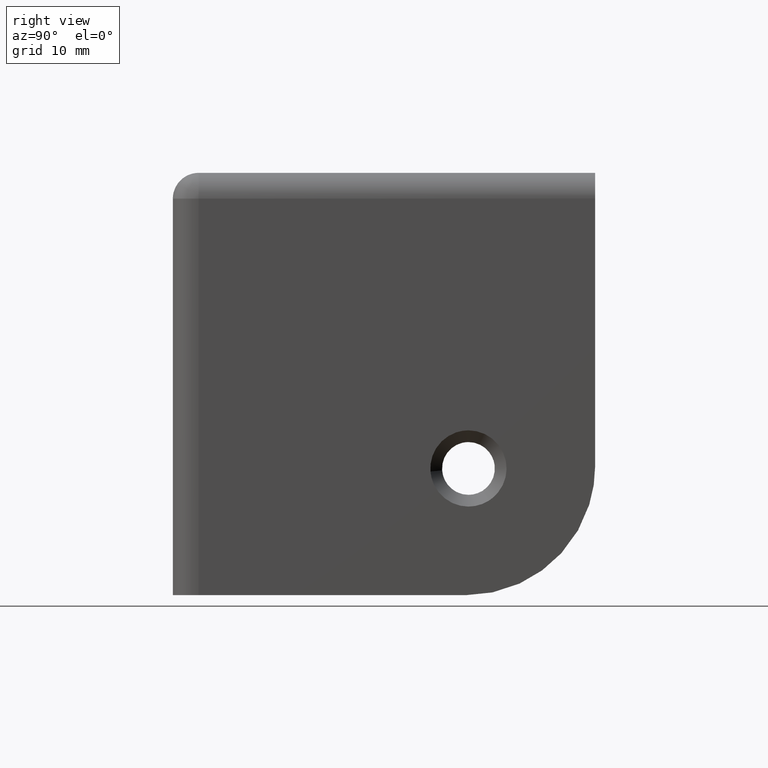
[diagram: clean part render]
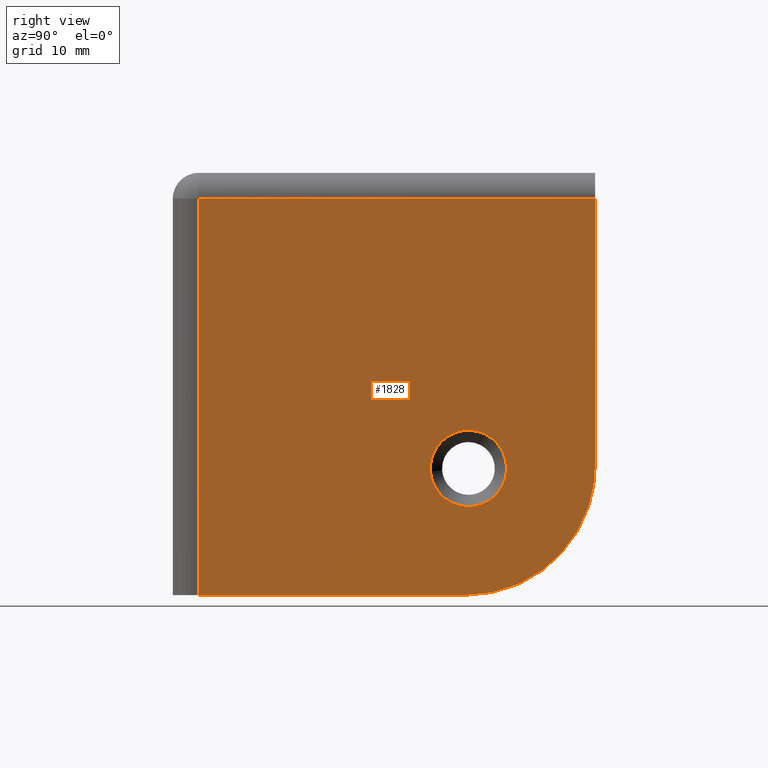
[diagram: same view with one face highlighted and labeled with its STEP entity id]
A machine part, right view. The second image highlights one B-rep face of the part: STEP entity #1828.
In plain terms, the highlighted face is a freeform B-spline surface patch.
Its self-contained STEP definition (entity closure, byte-faithful):
#413=CARTESIAN_POINT('',(3.235248E-012,26.948015078753819,8.060119841221102));
#414=VERTEX_POINT('',#413);
#420=CARTESIAN_POINT('',(4.032016E-015,25.199999999999999,14.050000000000001));
#421=VERTEX_POINT('',#420);
#422=CARTESIAN_POINT('',(4.032016E-015,25.199999999999999,14.050000000000001));
#423=CARTESIAN_POINT('',(4.032016E-015,28.450000000000003,14.050000000000001));
#424=CARTESIAN_POINT('',(4.032016E-015,28.449999999999999,10.800000000000001));
#425=CARTESIAN_POINT('',(4.032016E-015,28.449999999999999,9.018370618032277));
#426=CARTESIAN_POINT('',(3.235248E-012,26.948015078753819,8.060119841221102));
#434=(BOUNDED_CURVE()B_SPLINE_CURVE(2,(#422,#423,#424,#425,#426),.UNSPECIFIED.,.F.,.U.)B_SPLINE_CURVE_WITH_KNOTS((3,2,3),(0.0,0.250000000000000,0.407950112621783),.UNSPECIFIED.)CURVE()GEOMETRIC_REPRESENTATION_ITEM()RATIONAL_B_SPLINE_CURVE((1.0,0.707106781186547,1.0,0.814949932409034,0.863729296951362))REPRESENTATION_ITEM(''));
#435=EDGE_CURVE('',#421,#414,#434,.T.);
#437=CARTESIAN_POINT('',(9.120925E-012,21.960018665363730,10.545007938814059));
#438=VERTEX_POINT('',#437);
#439=CARTESIAN_POINT('',(9.120925E-012,21.960018665363730,10.545007938814068));
#440=CARTESIAN_POINT('',(4.032016E-015,21.950000000000003,10.672307152155025));
#441=CARTESIAN_POINT('',(4.032016E-015,21.949999999999999,10.800000000000001));
#442=CARTESIAN_POINT('',(4.032016E-015,21.950000000000003,14.050000000000001));
#443=CARTESIAN_POINT('',(4.032016E-015,25.199999999999999,14.050000000000001));
#451=(BOUNDED_CURVE()B_SPLINE_CURVE(2,(#439,#440,#441,#442,#443),.UNSPECIFIED.,.F.,.U.)B_SPLINE_CURVE_WITH_KNOTS((3,2,3),(0.736331300625389,0.750000000000000,1.0),.UNSPECIFIED.)CURVE()GEOMETRIC_REPRESENTATION_ITEM()RATIONAL_B_SPLINE_CURVE((0.969723356156418,0.983986122572707,1.0,0.707106781186547,1.0))REPRESENTATION_ITEM(''));
#452=EDGE_CURVE('',#438,#421,#451,.T.);
#556=CARTESIAN_POINT('',(4.032016E-015,25.199999999999999,7.550000000000001));
#557=VERTEX_POINT('',#556);
#558=CARTESIAN_POINT('',(4.032016E-015,25.199999999999999,7.550000000000001));
#559=CARTESIAN_POINT('',(4.032016E-015,22.195730902240513,7.550000000000001));
#560=CARTESIAN_POINT('',(9.120925E-012,21.960018665363737,10.545007938814068));
#568=(BOUNDED_CURVE()B_SPLINE_CURVE(2,(#558,#559,#560),.UNSPECIFIED.,.F.,.U.)B_SPLINE_CURVE_WITH_KNOTS((3,3),(0.500000000000000,0.736331300625390),.UNSPECIFIED.)CURVE()GEOMETRIC_REPRESENTATION_ITEM()RATIONAL_B_SPLINE_CURVE((1.0,0.723120658613840,0.969723356156420))REPRESENTATION_ITEM(''));
#569=EDGE_CURVE('',#557,#438,#568,.T.);
#571=CARTESIAN_POINT('',(3.235248E-012,26.948015078753819,8.060119841221102));
#572=CARTESIAN_POINT('',(4.032016E-015,26.148441180049439,7.550000000000001));
#573=CARTESIAN_POINT('',(4.032016E-015,25.199999999999999,7.550000000000001));
#581=(BOUNDED_CURVE()B_SPLINE_CURVE(2,(#571,#572,#573),.UNSPECIFIED.,.F.,.U.)B_SPLINE_CURVE_WITH_KNOTS((3,3),(0.407950112621783,0.500000000000000),.UNSPECIFIED.)CURVE()GEOMETRIC_REPRESENTATION_ITEM()RATIONAL_B_SPLINE_CURVE((0.863729296951362,0.892156848777513,1.0))REPRESENTATION_ITEM(''));
#582=EDGE_CURVE('',#414,#557,#581,.T.);
#1281=CARTESIAN_POINT('',(0.0,2.200000000000000,0.0));
#1282=VERTEX_POINT('',#1281);
#1298=CARTESIAN_POINT('',(0.0,2.200000000000000,33.799999999999997));
#1299=VERTEX_POINT('',#1298);
#1300=CARTESIAN_POINT('',(0.0,2.200000000000000,33.799999999999997));
#1301=CARTESIAN_POINT('',(0.0,2.200000000000000,0.0));
#1302=QUASI_UNIFORM_CURVE('',1,(#1300,#1301),.UNSPECIFIED.,.F.,.U.);
#1303=EDGE_CURVE('',#1299,#1282,#1302,.T.);
#1400=CARTESIAN_POINT('',(0.0,36.0,33.799999999999997));
#1401=VERTEX_POINT('',#1400);
#1421=CARTESIAN_POINT('',(0.0,36.0,33.799999999999997));
#1422=CARTESIAN_POINT('',(0.0,2.200000000000000,33.799999999999997));
#1423=QUASI_UNIFORM_CURVE('',1,(#1421,#1422),.UNSPECIFIED.,.F.,.U.);
#1424=EDGE_CURVE('',#1401,#1299,#1423,.T.);
#1549=CARTESIAN_POINT('',(0.0,25.0,1.776357E-015));
#1550=VERTEX_POINT('',#1549);
#1551=CARTESIAN_POINT('',(0.0,36.0,11.0));
#1552=VERTEX_POINT('',#1551);
#1553=CARTESIAN_POINT('',(0.0,25.0,0.0));
#1554=CARTESIAN_POINT('',(0.0,36.000000000000014,0.0));
#1555=CARTESIAN_POINT('',(0.0,36.000000000000007,11.0));
#1563=(BOUNDED_CURVE()B_SPLINE_CURVE(2,(#1553,#1554,#1555),.UNSPECIFIED.,.F.,.U.)CURVE()GEOMETRIC_REPRESENTATION_ITEM()QUASI_UNIFORM_CURVE()RATIONAL_B_SPLINE_CURVE((1.0,0.707106781186548,1.0))REPRESENTATION_ITEM(''));
#1564=EDGE_CURVE('',#1550,#1552,#1563,.T.);
#1607=CARTESIAN_POINT('',(0.0,36.0,33.799999999999997));
#1608=CARTESIAN_POINT('',(0.0,36.0,11.0));
#1609=QUASI_UNIFORM_CURVE('',1,(#1607,#1608),.UNSPECIFIED.,.F.,.U.);
#1610=EDGE_CURVE('',#1401,#1552,#1609,.T.);
#1676=CARTESIAN_POINT('',(0.0,25.0,1.776357E-015));
#1677=CARTESIAN_POINT('',(0.0,2.200000000000000,0.0));
#1678=QUASI_UNIFORM_CURVE('',1,(#1676,#1677),.UNSPECIFIED.,.F.,.U.);
#1679=EDGE_CURVE('',#1550,#1282,#1678,.T.);
#1810=CARTESIAN_POINT('',(0.0,0.511690065510962,35.488309299908600));
#1811=CARTESIAN_POINT('',(0.0,0.511690065510962,-1.688310810886352));
#1812=CARTESIAN_POINT('',(0.0,37.688310841075683,35.488309299908600));
#1813=CARTESIAN_POINT('',(0.0,37.688310841075683,-1.688310810886352));
#1814=B_SPLINE_SURFACE_WITH_KNOTS('',1,1,((#1810,#1812),(#1811,#1813)),.UNSPECIFIED.,.F.,.F.,.U.,(2,2),(2,2),(0.0,37.176620110794950),(0.0,37.176620775564722),.UNSPECIFIED.);
#1815=ORIENTED_EDGE('',*,*,#1424,.T.);
#1816=ORIENTED_EDGE('',*,*,#1303,.T.);
#1817=ORIENTED_EDGE('',*,*,#1679,.F.);
#1818=ORIENTED_EDGE('',*,*,#1564,.T.);
#1819=ORIENTED_EDGE('',*,*,#1610,.F.);
#1820=EDGE_LOOP('',(#1815,#1816,#1817,#1818,#1819));
#1821=FACE_OUTER_BOUND('',#1820,.T.);
#1822=ORIENTED_EDGE('',*,*,#569,.T.);
#1823=ORIENTED_EDGE('',*,*,#452,.T.);
#1824=ORIENTED_EDGE('',*,*,#435,.T.);
#1825=ORIENTED_EDGE('',*,*,#582,.T.);
#1826=EDGE_LOOP('',(#1822,#1823,#1824,#1825));
#1827=FACE_BOUND('',#1826,.T.);
#1828=ADVANCED_FACE('',(#1821,#1827),#1814,.T.);